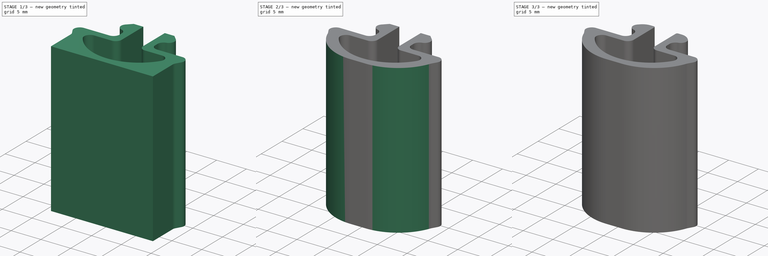
[diagram: build sequence overview — one tinted view per stage of 3, left to right]
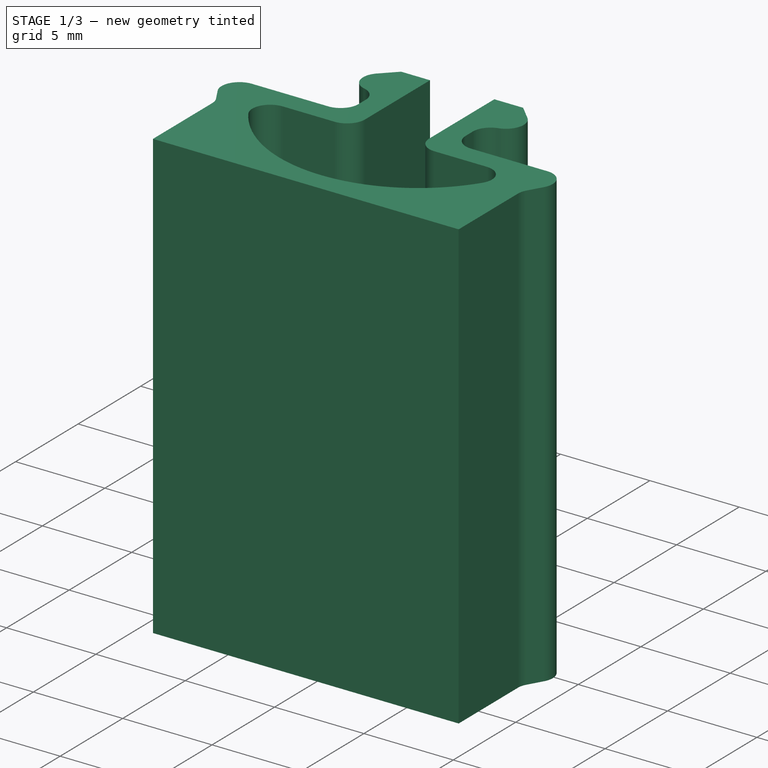
[diagram: stage 1 of 3 — iso view after this stage's code; geometry added in this stage tinted green]
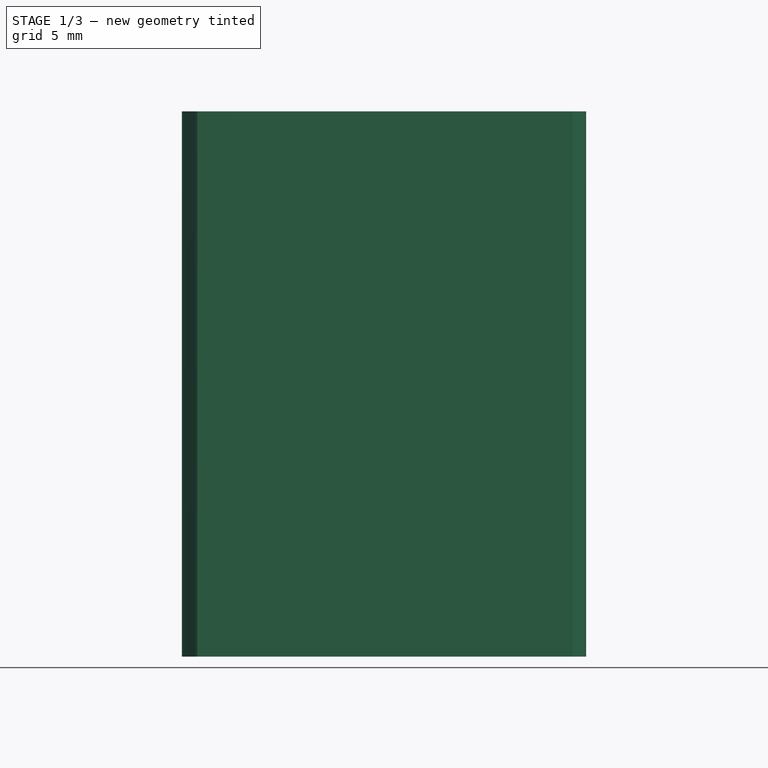
[diagram: stage 1 of 3 — front view after this stage's code; geometry added in this stage tinted green]
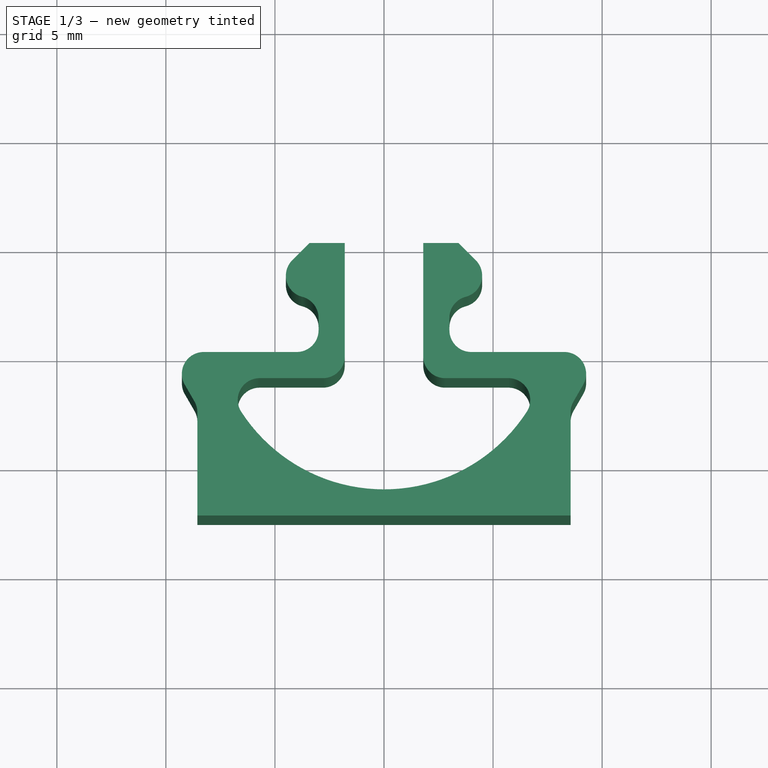
[diagram: stage 1 of 3 — top view after this stage's code; geometry added in this stage tinted green]
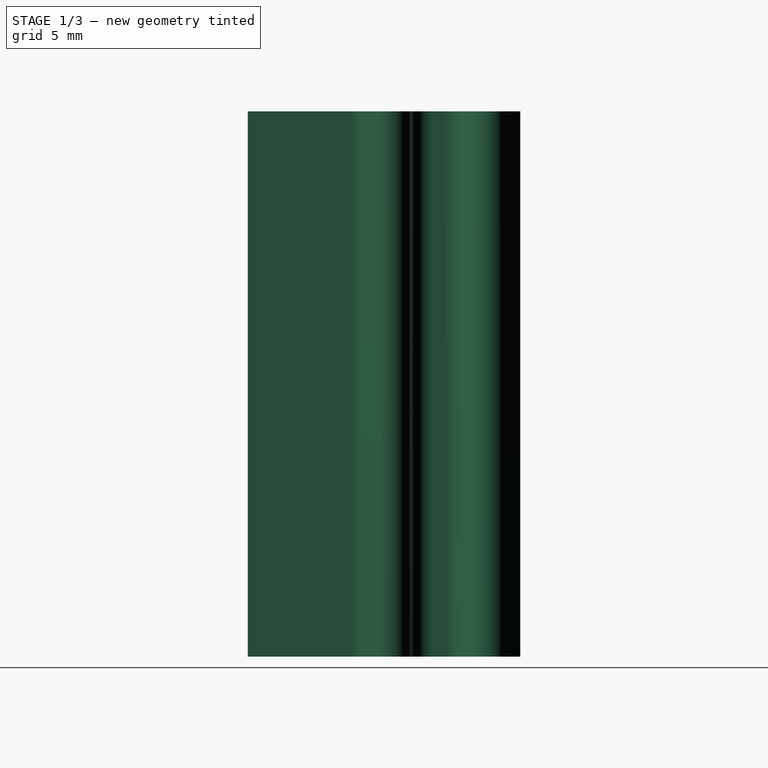
[diagram: stage 1 of 3 — right view after this stage's code; geometry added in this stage tinted green]
FCSTD DOCUMENT  (FreeCAD 0.20R29410 (Git))
Label: extrusion-cable-clip
License: All rights reserved
LicenseURL: http://en.wikipedia.org/wiki/All_rights_reserved
objects: PartDesign::Fillet×4, Sketcher::SketchObject×1, PartDesign::Pad×1, PartDesign::Body×1
note: 12 computed .brp shape members not serialized (recipe doc carries the construction recipe); baked Part::Feature solids carry a one-line shape summary decoded from their .brp

FEATURE [Sketcher::SketchObject] Sketch
  FullyConstrained = true
  MapMode = 5
  Support = -> [XY_Plane]
  sketch-geometry (24):
    g0: LineSegment StartX=-1.8 StartY=5 StartZ=0 EndX=-3.41421 EndY=5 EndZ=0
    g1: LineSegment StartX=-3.41421 StartY=5 StartZ=0 EndX=-4.20711 EndY=4.20711 EndZ=0
    g2: ArcOfCircle CenterX=-3.5 CenterY=3.5 CenterZ=0 NormalX=0 NormalY=0 NormalZ=1 AngleXU=0 Radius=1 StartAngle=2.35619 EndAngle=4.71239
    g3: LineSegment StartX=-3.5 StartY=2.5 StartZ=0 EndX=-3 EndY=2.5 EndZ=0
    g4: LineSegment StartX=-3 StartY=2.5 StartZ=0 EndX=-3 EndY=0 EndZ=0
    g5: LineSegment StartX=-3 StartY=0 StartZ=0 EndX=-10 EndY=0 EndZ=0
    g6: LineSegment StartX=-10 StartY=0 StartZ=0 EndX=-8.55662 EndY=-2.5 EndZ=0
    g7: LineSegment StartX=8.55662 StartY=-2.5 StartZ=0 EndX=10 EndY=0 EndZ=0
    g8: LineSegment StartX=10 StartY=0 StartZ=0 EndX=3 EndY=0 EndZ=0
    g9: LineSegment StartX=3 StartY=0 StartZ=0 EndX=3 EndY=2.5 EndZ=0
    g10: LineSegment StartX=3 StartY=2.5 StartZ=0 EndX=3.5 EndY=2.5 EndZ=0
    g11: ArcOfCircle CenterX=3.5 CenterY=3.5 CenterZ=0 NormalX=0 NormalY=0 NormalZ=1 AngleXU=0 Radius=1 StartAngle=4.71239 EndAngle=7.06858
    g12: LineSegment StartX=4.20711 StartY=4.20711 StartZ=0 EndX=3.41421 EndY=5 EndZ=0
    g13: LineSegment StartX=3.41421 StartY=5 StartZ=0 EndX=1.8 EndY=5 EndZ=0
    g14: LineSegment StartX=1.8 StartY=5 StartZ=0 EndX=1.8 EndY=-1.2 EndZ=0
    g15: LineSegment StartX=1.8 StartY=-1.2 StartZ=0 EndX=7.31779 EndY=-1.2 EndZ=0
    g16: LineSegment StartX=-7.31779 StartY=-1.2 StartZ=0 EndX=-1.8 EndY=-1.2 EndZ=0
    g17: LineSegment StartX=-1.8 StartY=-1.2 StartZ=0 EndX=-1.8 EndY=5 EndZ=0
    g18: ArcOfCircle CenterX=0 CenterY=1.5 CenterZ=0 NormalX=0 NormalY=0 NormalZ=1 AngleXU=0 Radius=7.8 StartAngle=3.49506 EndAngle=5.92972
    g19: LineSegment StartX=-8.55662 StartY=-2.5 StartZ=0 EndX=-8.55662 EndY=-7.5 EndZ=0
    g20: LineSegment StartX=-8.55662 StartY=-7.5 StartZ=0 EndX=8.55662 EndY=-7.5 EndZ=0
    g21: LineSegment StartX=8.55662 StartY=-7.5 StartZ=0 EndX=8.55662 EndY=-2.5 EndZ=0
    g22: GeomPoint X=0 Y=-6.3 Z=0
    g23: GeomPoint X=0 Y=-7.5 Z=0
  constraints (69):
    c: Horizontal(g0)
    c: Coincident(g0,g1)
    c: Coincident(g2,g1)
    c: Coincident(g2,g3)
    c: Coincident(g3,g4)
    c: Coincident(g4,g5)
    c: Coincident(g5,g6)
    c: Coincident(g7,g8)
    c: Horizontal(g8)
    c: Coincident(g8,g9)
    c: Coincident(g9,g10)
    c: Coincident(g11,g10)
    c: Tangent(g11,g12) = -1.5708
    c: Coincident(g12,g13)
    c: Coincident(g13,g14)
    c: Vertical(g14)
    c: Coincident(g14,g15)
    c: Horizontal(g15)
    c: Coincident(g16,g17)
    c: Coincident(g17,g0)
    c: Vertical(g17)
    c: Horizontal(g16)
    c: Horizontal(g5)
    c: Vertical(g4)
    c: Vertical(g9)
    c: Horizontal(g3)
    c: Horizontal(g10)
    c: Tangent(g2,g3)
    c: Tangent(g1,g2)
    c: Tangent(g10,g11)
    c: Symmetric(g0,g13,g-2)
    c: Angle(g13,g12) = 2.35619
    c: Angle(g1,g0) = 2.35619
    c: PointOnObject(g14,g16)
    c: DistanceY(g16,g4) = 1.2
    c: PointOnObject(g4,g-1)
    c: DistanceX(g4,g16) = 1.2
    c: PointOnObject(g9,g3)
    c: Symmetric(g0,g12,g-2)
    c: DistanceX(g3,g9) = 6
    c: Diameter(g11) = 2
    c: Diameter(g2) = 2
    c: DistanceX(g2,g11) = 7
    c: DistanceY(g-1,g0) = 5
    c: PointOnObject(g18,g-2)
    c: Coincident(g18,g16)
    c: Coincident(g18,g15)
    c: Coincident(g6,g19)
    c: Vertical(g19)
    c: Coincident(g19,g20)
    c: Coincident(g20,g21)
    c: Coincident(g21,g7)
    c: Vertical(g21)
    c: Symmetric(g19,g20,g-2)
    c: DistanceX(g5,g-1) = 10
    c: DistanceX(g-1,g7) = 10
    c: Equal(g19,g21)
    c: DistanceY(g-1,g18) = 1.5
    c: DistanceY(g19,g-1) = 7.5
    c: Angle(g6,g5) = 1.0472
    c: DistanceY(g19,g19) = 5
    c: Diameter(g18) = 15.6
    c: DistanceY(g4,g4) = 2.5
    c: Symmetric(g4,g8,g-2)
    c: PointOnObject(g22,g18)
    c: PointOnObject(g22,g-2)
    c: PointOnObject(g23,g-2)
    c: PointOnObject(g23,g20)
    c: DistanceY(g23,g22) = 1.2
FEATURE [PartDesign::Pad] Pad
  AllowMultiFace = false
  Direction = (0,0,1)
  Length = 25
  Length2 = 100
  Profile = -> Sketch
  Type = 0
FEATURE [PartDesign::Fillet] Fillet
  Base = -> Pad [Edge26,Edge35,Edge38,Edge23,Edge62,Edge1,Edge59,Edge2,Edge41,Edge20,Edge44,Edge17]
  BaseFeature = -> Pad
  Radius = 1
  SupportTransform = false
  UseAllEdges = false
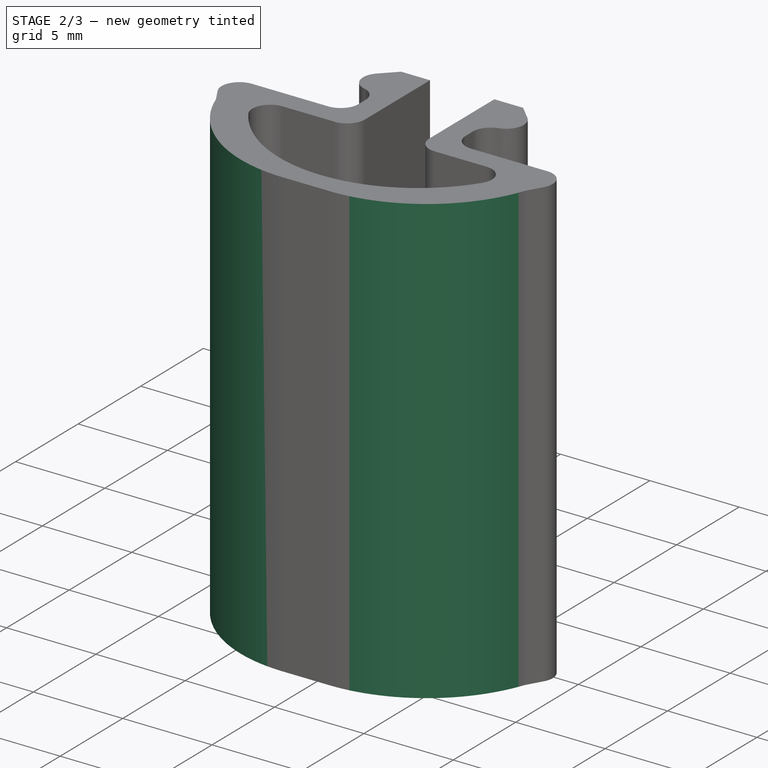
[diagram: stage 2 of 3 — iso view after this stage's code; geometry added in this stage tinted green]
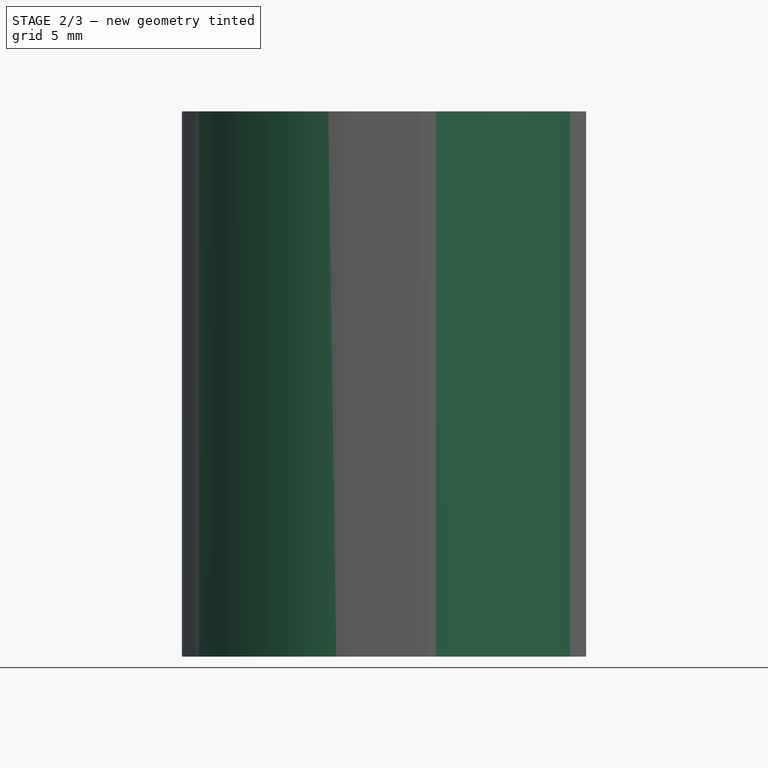
[diagram: stage 2 of 3 — front view after this stage's code; geometry added in this stage tinted green]
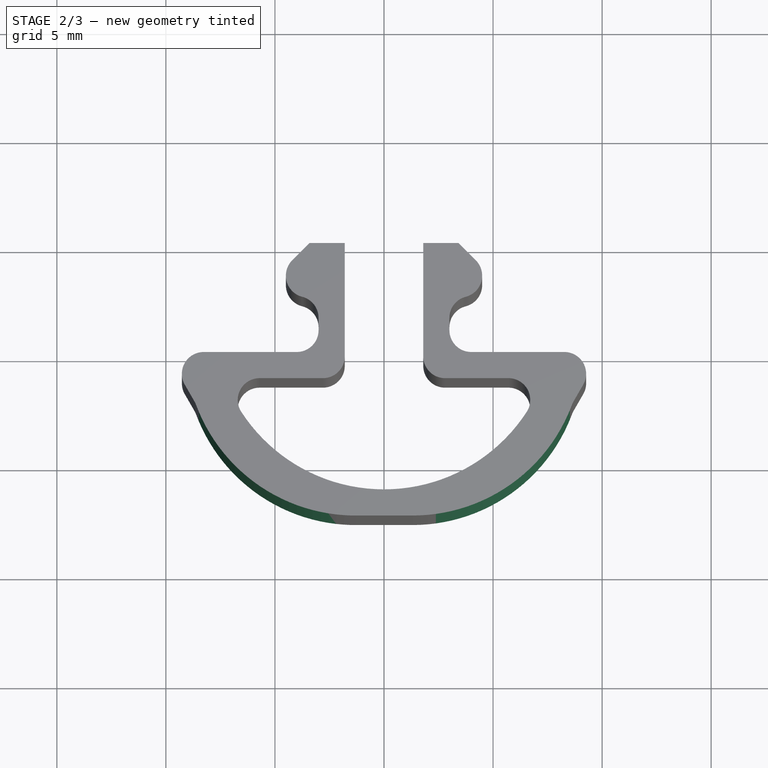
[diagram: stage 2 of 3 — top view after this stage's code; geometry added in this stage tinted green]
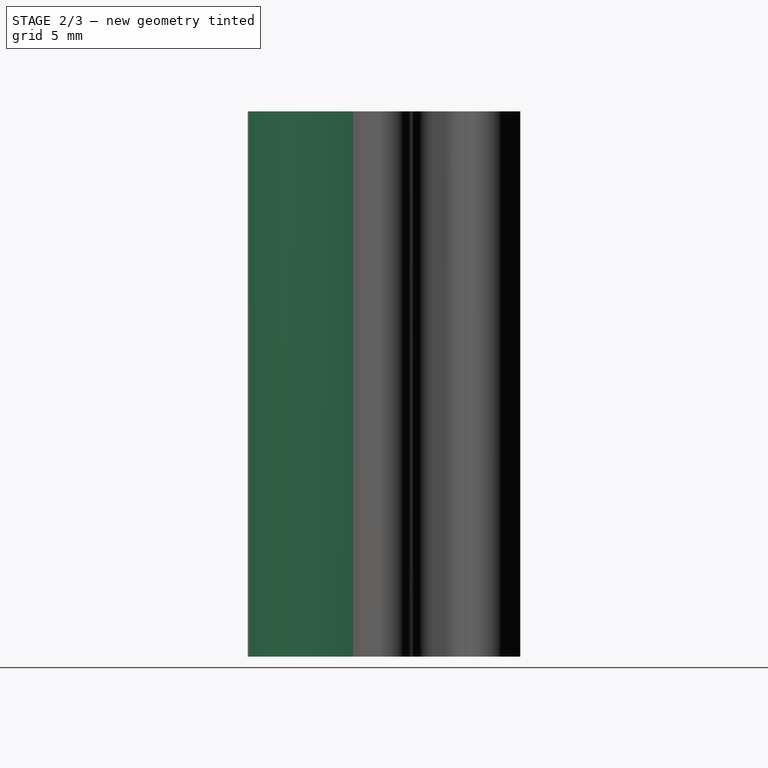
[diagram: stage 2 of 3 — right view after this stage's code; geometry added in this stage tinted green]
FEATURE [PartDesign::Fillet] Fillet001
  Base = -> Fillet [Edge92,Edge94]
  BaseFeature = -> Fillet
  Radius = 7.8
  SupportTransform = false
  UseAllEdges = false
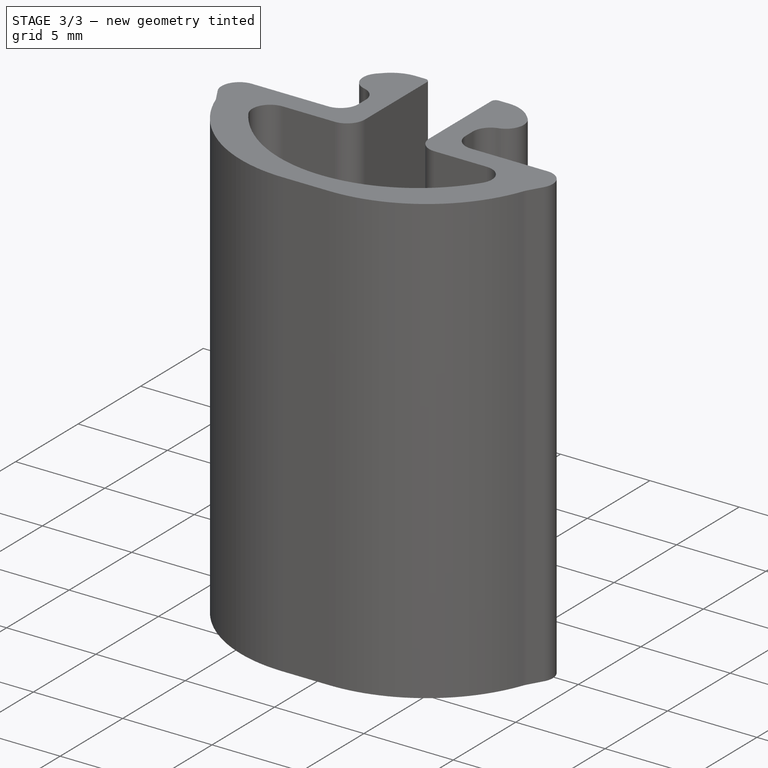
[diagram: stage 3 of 3 — iso view after this stage's code; geometry added in this stage tinted green]
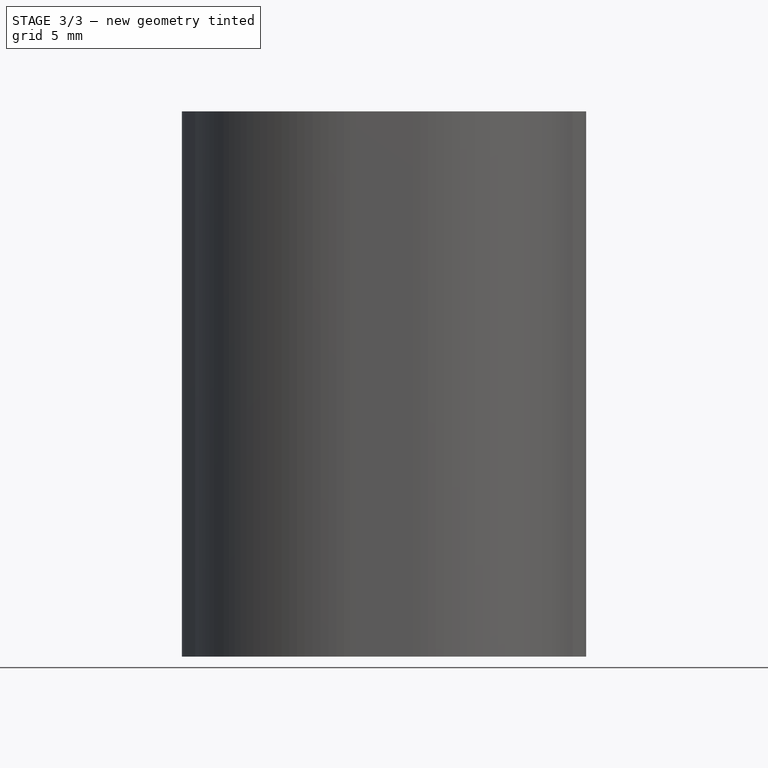
[diagram: stage 3 of 3 — front view after this stage's code; geometry added in this stage tinted green]
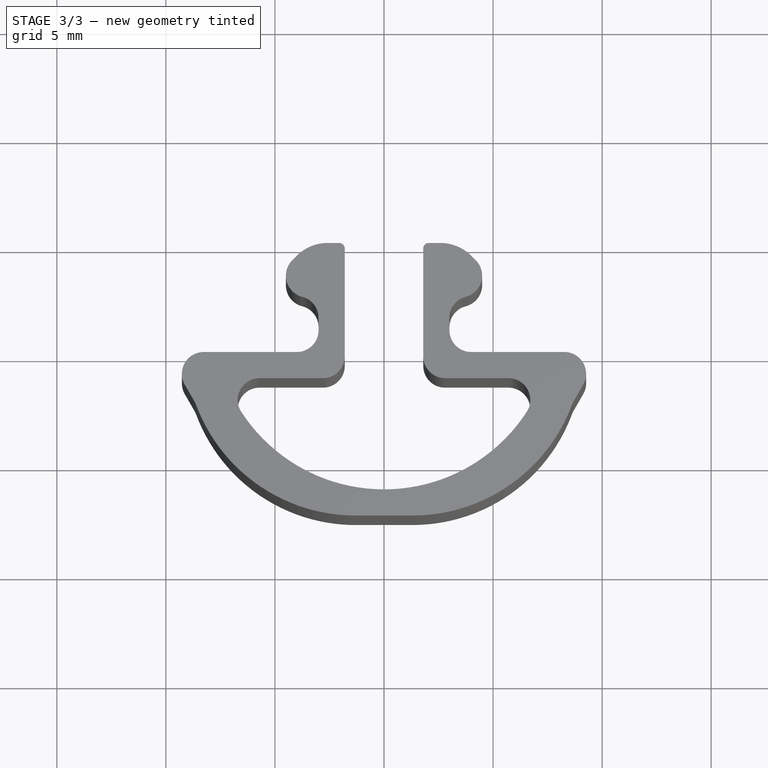
[diagram: stage 3 of 3 — top view after this stage's code; geometry added in this stage tinted green]
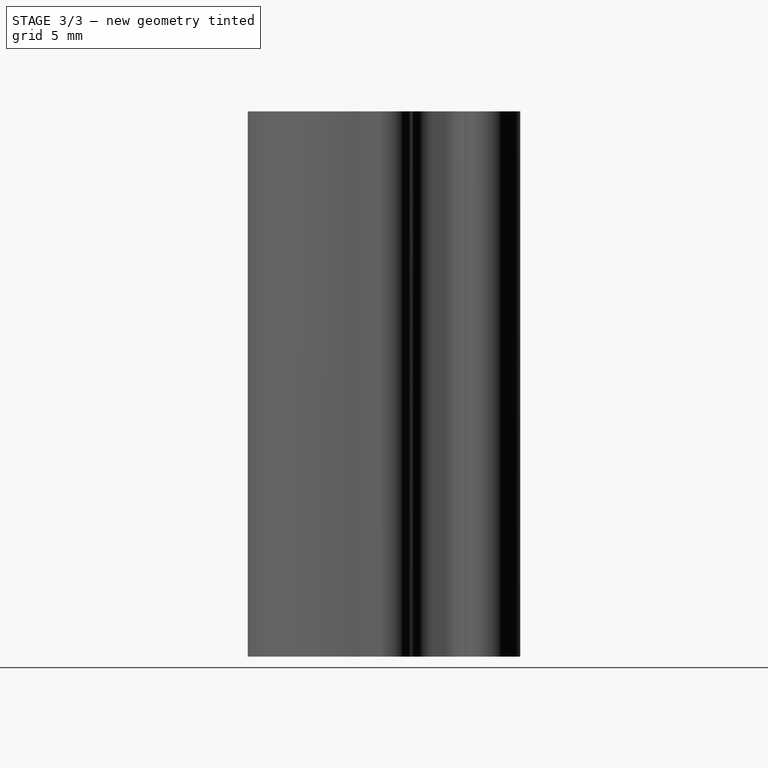
[diagram: stage 3 of 3 — right view after this stage's code; geometry added in this stage tinted green]
FEATURE [PartDesign::Fillet] Fillet002
  Base = -> Fillet001 [Edge66,Edge80]
  BaseFeature = -> Fillet001
  Radius = 2
  SupportTransform = false
  UseAllEdges = false
FEATURE [PartDesign::Fillet] Fillet003
  Base = -> Fillet002 [Edge42,Edge78]
  BaseFeature = -> Fillet002
  Radius = 0.25
  SupportTransform = false
  UseAllEdges = false
FEATURE [PartDesign::Body] Body
  Group = -> [Sketch,Pad,Fillet,Fillet001,Fillet002,Fillet003]
  Origin = -> Origin
  Tip = -> Fillet003
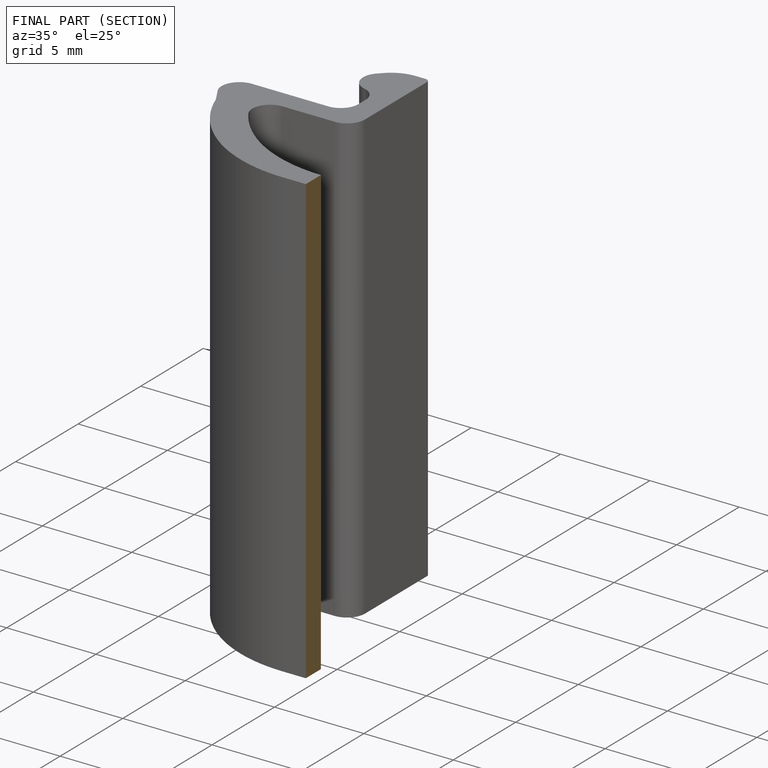
[diagram: finished part — half-section view (interior)]
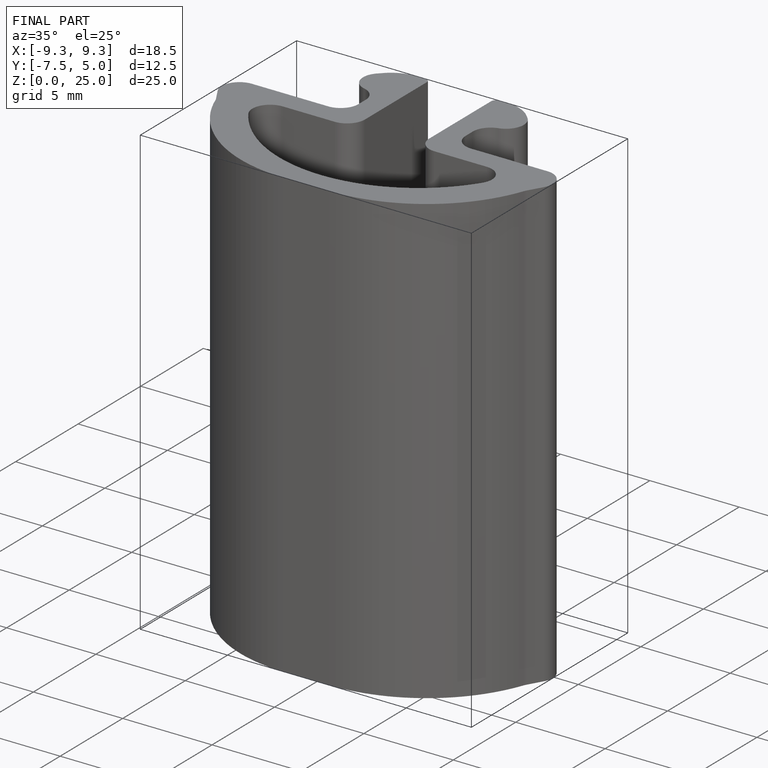
[diagram: finished part — iso view with bounding-box wireframe]
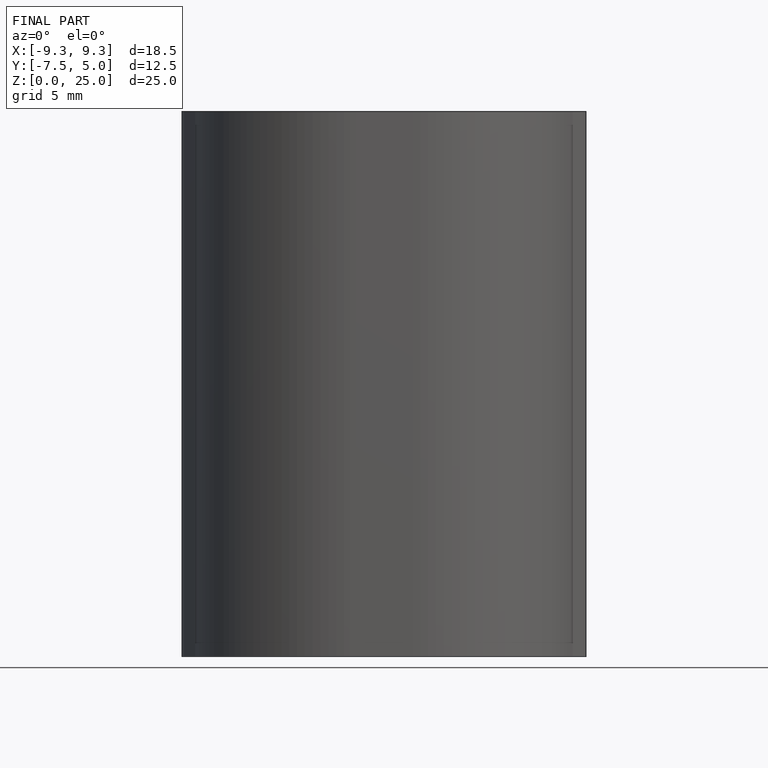
[diagram: finished part — front view with bounding-box wireframe]
